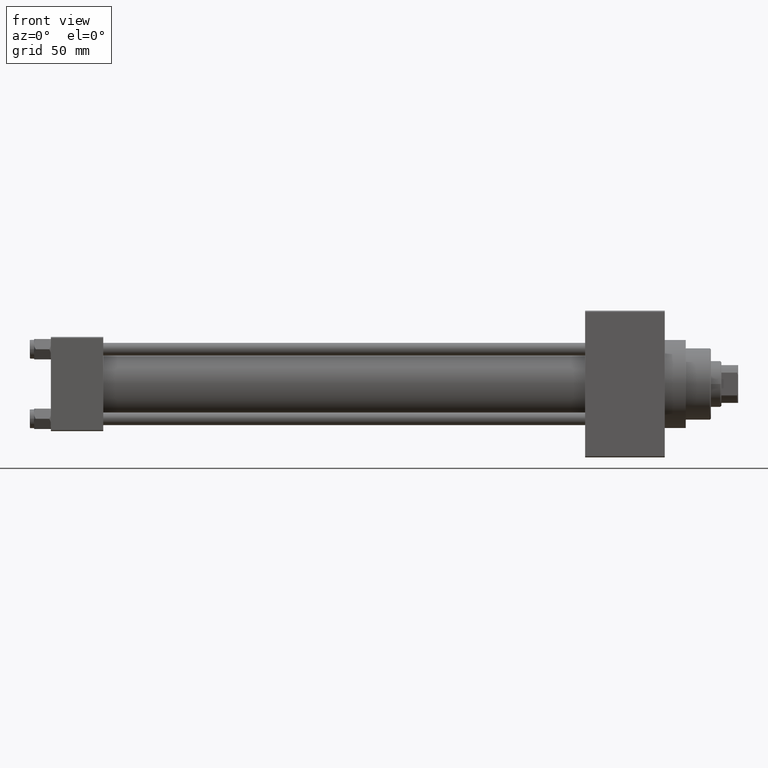
[diagram: clean part render]
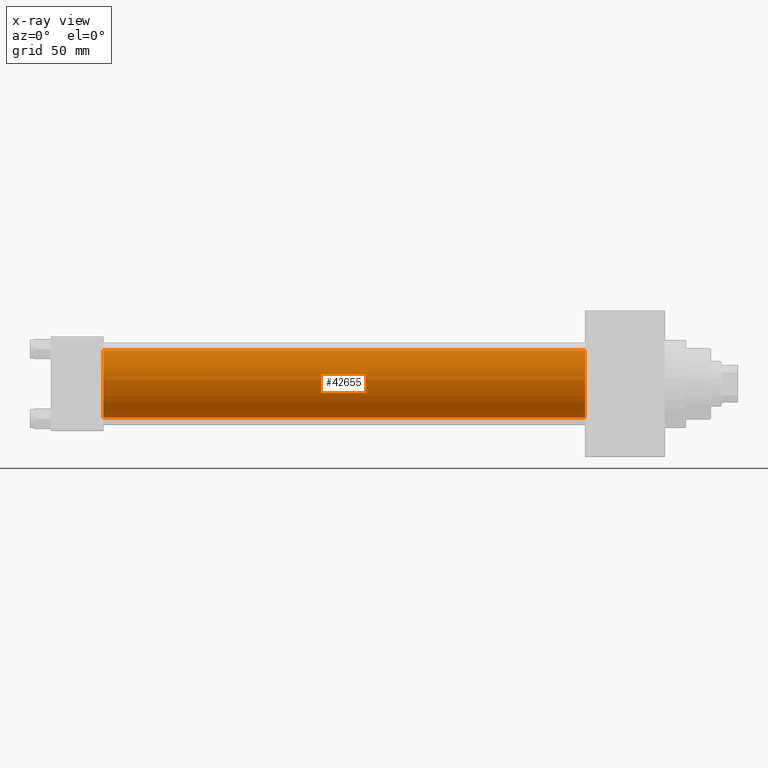
[diagram: x-ray — body ghosted, one internal face saturated and labeled with its STEP entity id]
A machine part, front view, then the same camera in x-ray: the body is ghosted and one INTERNAL B-rep face — a face not visible from any outside direction — is saturated and labeled: STEP entity #42655.
In plain terms, the highlighted cylindrical surface (edge-blend (fillet) strip) has radius 16 mm, axis along (-1, -0, -0).
Its self-contained STEP definition (entity closure, byte-faithful):
#2481 = CARTESIAN_POINT ( 'NONE',  ( 255.0000000000000000, -2.602085213965210642E-15, 16.00000000000000000 ) ) ;
#3644 = CARTESIAN_POINT ( 'NONE',  ( 255.0000000000000000, -2.602085213965210642E-15, 0.000000000000000000 ) ) ;
#3911 = ORIENTED_EDGE ( 'NONE', *, *, #39520, .F. ) ;
#4485 = CARTESIAN_POINT ( 'NONE',  ( 255.0000000000000000, -6.426503353294456087E-16, -16.00000000000000000 ) ) ;
#4508 = DIRECTION ( 'NONE',  ( -1.000000000000000000, -0.000000000000000000, -0.000000000000000000 ) ) ;
#5309 = ORIENTED_EDGE ( 'NONE', *, *, #47239, .T. ) ;
#7519 = VERTEX_POINT ( 'NONE', #24942 ) ;
#8612 = VERTEX_POINT ( 'NONE', #41044 ) ;
#10166 = DIRECTION ( 'NONE',  ( -1.000000000000000000, -0.000000000000000000, -0.000000000000000000 ) ) ;
#10404 = LINE ( 'NONE', #2481, #27014 ) ;
#10511 = VERTEX_POINT ( 'NONE', #18428 ) ;
#11329 = EDGE_CURVE ( 'NONE', #8612, #10511, #10404, .T. ) ;
#13381 = DIRECTION ( 'NONE',  ( -1.000000000000000000, -0.000000000000000000, -0.000000000000000000 ) ) ;
#16647 = CARTESIAN_POINT ( 'NONE',  ( 255.0000000000000000, -2.602085213965210642E-15, 0.000000000000000000 ) ) ;
#18170 = VERTEX_POINT ( 'NONE', #4485 ) ;
#18428 = CARTESIAN_POINT ( 'NONE',  ( 25.00000000000000000, -2.602085213965210642E-15, 16.00000000000000000 ) ) ;
#18953 = AXIS2_PLACEMENT_3D ( 'NONE', #43789, #29380, #36826 ) ;
#18959 = ORIENTED_EDGE ( 'NONE', *, *, #31023, .T. ) ;
#19115 = VECTOR ( 'NONE', #10166, 1000.000000000000000 ) ;
#24942 = CARTESIAN_POINT ( 'NONE',  ( 25.00000000000000000, -6.426503353294456087E-16, -16.00000000000000000 ) ) ;
#25338 = AXIS2_PLACEMENT_3D ( 'NONE', #16647, #4508, #43239 ) ;
#27014 = VECTOR ( 'NONE', #13381, 1000.000000000000000 ) ;
#27602 = FACE_OUTER_BOUND ( 'NONE', #47002, .T. ) ;
#28356 = AXIS2_PLACEMENT_3D ( 'NONE', #3644, #33919, #30200 ) ;
#29380 = DIRECTION ( 'NONE',  ( 1.000000000000000000, 0.000000000000000000, 0.000000000000000000 ) ) ;
#30200 = DIRECTION ( 'NONE',  ( 0.000000000000000000, 0.000000000000000000, -1.000000000000000000 ) ) ;
#31023 = EDGE_CURVE ( 'NONE', #8612, #18170, #35453, .T. ) ;
#33919 = DIRECTION ( 'NONE',  ( 1.000000000000000000, 0.000000000000000000, 0.000000000000000000 ) ) ;
#33987 = CIRCLE ( 'NONE', #18953, 16.00000000000000000 ) ;
#35453 = CIRCLE ( 'NONE', #28356, 16.00000000000000000 ) ;
#36826 = DIRECTION ( 'NONE',  ( 0.000000000000000000, 0.000000000000000000, -1.000000000000000000 ) ) ;
#39476 = CARTESIAN_POINT ( 'NONE',  ( 255.0000000000000000, -6.426503353294456087E-16, -16.00000000000000000 ) ) ;
#39520 = EDGE_CURVE ( 'NONE', #10511, #7519, #33987, .T. ) ;
#41044 = CARTESIAN_POINT ( 'NONE',  ( 255.0000000000000000, -2.602085213965210642E-15, 16.00000000000000000 ) ) ;
#42655 = ADVANCED_FACE ( 'NONE', ( #27602 ), #46224, .F. ) ;
#43239 = DIRECTION ( 'NONE',  ( 0.000000000000000000, 0.000000000000000000, 1.000000000000000000 ) ) ;
#43789 = CARTESIAN_POINT ( 'NONE',  ( 25.00000000000000000, -2.602085213965210642E-15, 0.000000000000000000 ) ) ;
#44199 = LINE ( 'NONE', #39476, #19115 ) ;
#46224 = CYLINDRICAL_SURFACE ( 'NONE', #25338, 16.00000000000000000 ) ;
#47002 = EDGE_LOOP ( 'NONE', ( #18959, #5309, #3911, #47439 ) ) ;
#47239 = EDGE_CURVE ( 'NONE', #18170, #7519, #44199, .T. ) ;
#47439 = ORIENTED_EDGE ( 'NONE', *, *, #11329, .F. ) ;